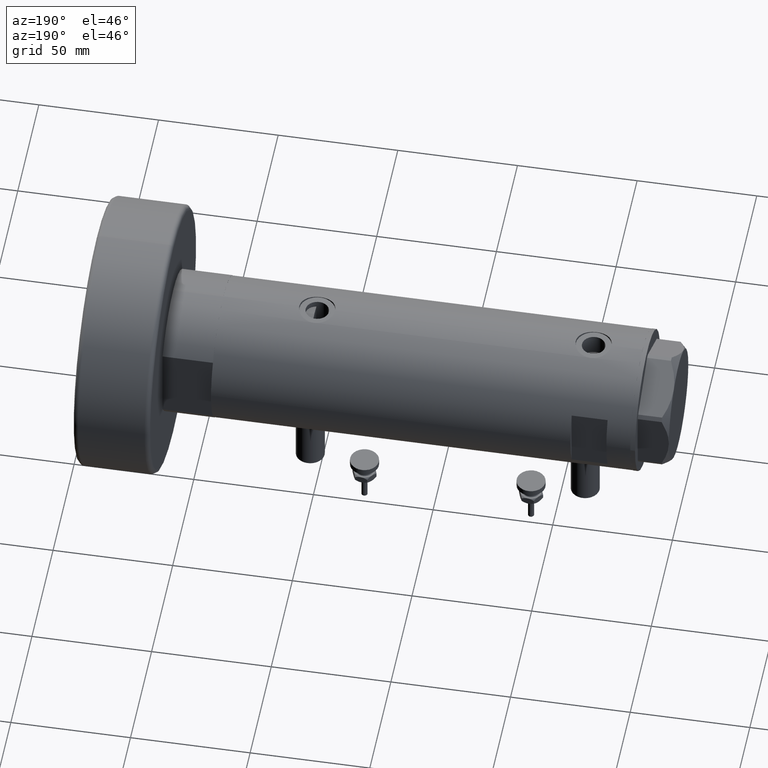
[diagram: clean part render]
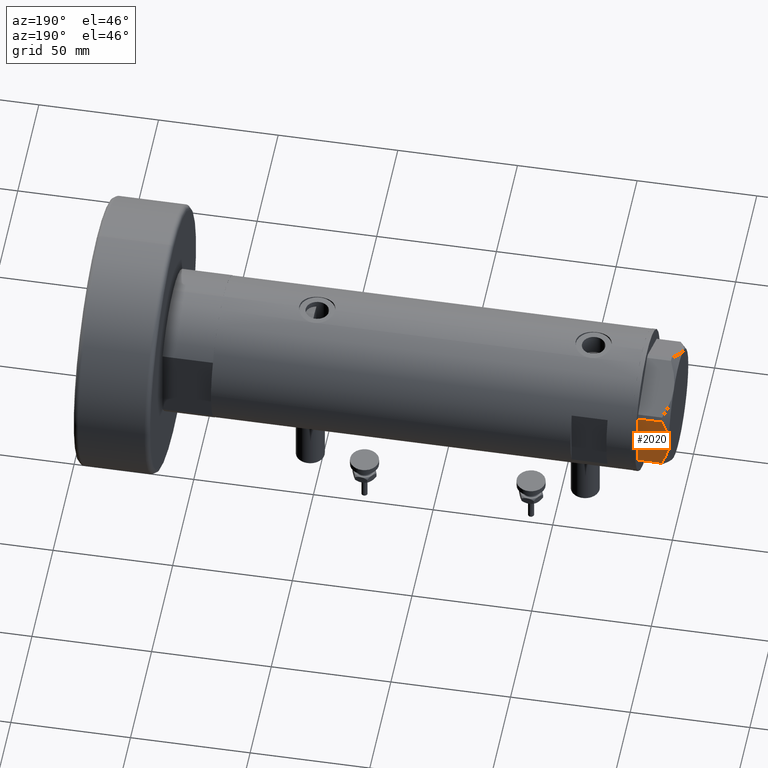
[diagram: same view with one face highlighted and labeled with its STEP entity id]
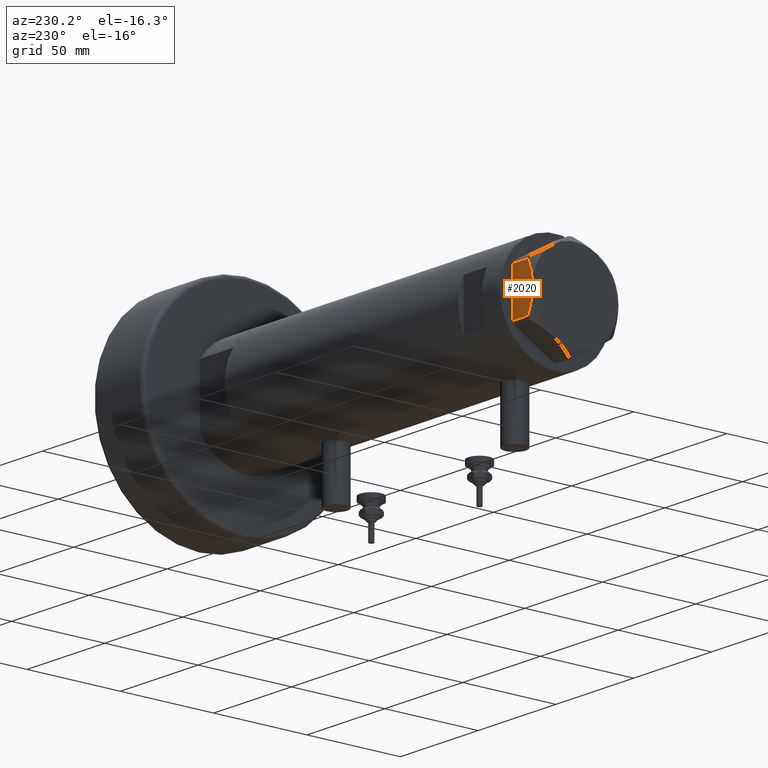
[diagram: same view with one face highlighted and labeled with its STEP entity id]
A machine part, auxiliary view. The second image highlights one B-rep face of the part: STEP entity #2020.
A second angle (auxiliary view) of the same face is appended — the face is thin or edge-on in the first view.
In plain terms, the highlighted planar face has unit normal (0, -1, 0).
Its self-contained STEP definition (entity closure, byte-faithful):
#62 = CARTESIAN_POINT ( 'NONE',  ( 23.00000000000003197, -8.246028007352199651, 11.57113180864690705 ) ) ;
#91 = CARTESIAN_POINT ( 'NONE',  ( 23.00000000000002132, -7.239756182922042704, 11.89218606342284978 ) ) ;
#92 = VERTEX_POINT ( 'NONE', #4382 ) ;
#134 = DIRECTION ( 'NONE',  ( -1.032024811306395780E-14, 1.000000000000000000, 0.000000000000000000 ) ) ;
#261 = CARTESIAN_POINT ( 'NONE',  ( 22.99999999999986500, 8.252113629125442884, 11.58164206268022056 ) ) ;
#379 = CARTESIAN_POINT ( 'NONE',  ( 23.00000000000007461, -12.15905619136117544, 9.983800287807614637 ) ) ;
#614 = AXIS2_PLACEMENT_3D ( 'NONE', #5687, #1363, #4766 ) ;
#656 = LINE ( 'NONE', #4566, #3728 ) ;
#685 = CARTESIAN_POINT ( 'NONE',  ( 22.99999999999987210, 7.253003311474555126, 11.90327681034763430 ) ) ;
#724 = CARTESIAN_POINT ( 'NONE',  ( 22.99999999999992539, 2.119709279062088836, 12.90853521217320043 ) ) ;
#759 = CARTESIAN_POINT ( 'NONE',  ( 22.99999999999982947, 11.68282849742354301, 10.20637235269540888 ) ) ;
#803 = FACE_OUTER_BOUND ( 'NONE', #4490, .T. ) ;
#899 = CARTESIAN_POINT ( 'NONE',  ( 22.99999999999982236, 12.15905619136166571, 0.000000000000000000 ) ) ;
#932 = CARTESIAN_POINT ( 'NONE',  ( 22.99999999999982236, 12.15905619136166571, 13.00000000000000000 ) ) ;
#1043 = CARTESIAN_POINT ( 'NONE',  ( 23.00000000000005684, -10.23890159976106240, 10.84081242829091529 ) ) ;
#1106 = CARTESIAN_POINT ( 'NONE',  ( 22.99999999999996447, -2.122900714017910584, 13.00000000000008882 ) ) ;
#1363 = DIRECTION ( 'NONE',  ( -1.000000000000000000, -1.032024811306395780E-14, 0.000000000000000000 ) ) ;
#1519 = CARTESIAN_POINT ( 'NONE',  ( 23.00000000000007461, -12.15905619136117721, 0.000000000000000000 ) ) ;
#1595 = CARTESIAN_POINT ( 'NONE',  ( 22.99999999999999289, -4.194757081058820170, 12.70300035152520479 ) ) ;
#1796 = ORIENTED_EDGE ( 'NONE', *, *, #3426, .F. ) ;
#1955 = CARTESIAN_POINT ( 'NONE',  ( 22.99999999999995026, 2.373657066004705010E-13, 13.00000000000000000 ) ) ;
#2019 = CARTESIAN_POINT ( 'NONE',  ( 23.00000000000001421, -6.734330413511261604, 12.03938974125266448 ) ) ;
#2020 = ADVANCED_FACE ( 'NONE', ( #803 ), #6143, .F. ) ;
#2215 = ORIENTED_EDGE ( 'NONE', *, *, #5692, .T. ) ;
#2295 = CARTESIAN_POINT ( 'NONE',  ( 22.99999999999990052, 5.228918809624289565, 12.43333703384985256 ) ) ;
#2639 = CARTESIAN_POINT ( 'NONE',  ( 22.99999999999984368, 11.20155944044835472, 10.42110268263274264 ) ) ;
#2673 = VECTOR ( 'NONE', #4693, 1000.000000000000000 ) ;
#2876 = VERTEX_POINT ( 'NONE', #1955 ) ;
#3056 = VERTEX_POINT ( 'NONE', #1519 ) ;
#3239 = CARTESIAN_POINT ( 'NONE',  ( 23.00000000000007461, -12.15905619136117544, 9.983800287807614637 ) ) ;
#3334 = CARTESIAN_POINT ( 'NONE',  ( 23.00000000000006750, -11.20825071633899483, 10.42817330637845608 ) ) ;
#3423 = VECTOR ( 'NONE', #6147, 1000.000000000000000 ) ;
#3426 = EDGE_CURVE ( 'NONE', #5842, #2876, #6184, .T. ) ;
#3509 = ORIENTED_EDGE ( 'NONE', *, *, #5330, .T. ) ;
#3618 = CARTESIAN_POINT ( 'NONE',  ( 22.99999999999995026, 2.373657066004705010E-13, 13.00000000000000000 ) ) ;
#3728 = VECTOR ( 'NONE', #134, 1000.000000000000000 ) ;
#4215 = CARTESIAN_POINT ( 'NONE',  ( 22.99999999999992184, 2.643615312305319875, 12.85430456063626714 ) ) ;
#4287 = CARTESIAN_POINT ( 'NONE',  ( 22.99999999999985434, 9.734726261263476843, 11.02892470009566139 ) ) ;
#4382 = CARTESIAN_POINT ( 'NONE',  ( 22.99999999999982236, 12.15905619136166038, 9.983800287807609308 ) ) ;
#4465 = CARTESIAN_POINT ( 'NONE',  ( 23.00000000000004263, -8.748091966971225375, 11.39681897828457124 ) ) ;
#4490 = EDGE_LOOP ( 'NONE', ( #1796, #3509, #4769, #2215, #6118 ) ) ;
#4566 = CARTESIAN_POINT ( 'NONE',  ( 23.00000000000008527, -13.27905619136115867, 0.000000000000000000 ) ) ;
#4684 = CARTESIAN_POINT ( 'NONE',  ( 22.99999999999993960, 1.063773509315898647, 12.98143808360683060 ) ) ;
#4693 = DIRECTION ( 'NONE',  ( 0.000000000000000000, 0.000000000000000000, 1.000000000000000000 ) ) ;
#4766 = DIRECTION ( 'NONE',  ( 1.032024811306395780E-14, -1.000000000000000000, 0.000000000000000000 ) ) ;
#4769 = ORIENTED_EDGE ( 'NONE', *, *, #6001, .T. ) ;
#4918 = VERTEX_POINT ( 'NONE', #899 ) ;
#4994 = B_SPLINE_CURVE_WITH_KNOTS ( 'NONE', 3,
 ( #5572, #5145, #4684, #724, #4215, #5671, #2295, #685, #261, #4287, #5178, #2639, #759, #6191 ),
 .UNSPECIFIED., .F., .F.,
 ( 4, 2, 2, 2, 2, 2, 4 ),
 ( 0.04777139595992689614, 0.04934380568070229761, 0.05091621540147769215, 0.05406103484302849510, 0.05720585428457929111, 0.05877826400535468565, 0.06035067372613008713 ),
 .UNSPECIFIED. ) ;
#5044 = LINE ( 'NONE', #6082, #3423 ) ;
#5145 = CARTESIAN_POINT ( 'NONE',  ( 22.99999999999994671, 0.5295934231899315225, 13.00000000000009770 ) ) ;
#5178 = CARTESIAN_POINT ( 'NONE',  ( 22.99999999999984723, 10.22738952213813590, 10.83247031367476687 ) ) ;
#5330 = EDGE_CURVE ( 'NONE', #5842, #3056, #5044, .T. ) ;
#5572 = CARTESIAN_POINT ( 'NONE',  ( 22.99999999999995026, 2.373657066004705010E-13, 13.00000000000000000 ) ) ;
#5662 = LINE ( 'NONE', #932, #2673 ) ;
#5671 = CARTESIAN_POINT ( 'NONE',  ( 22.99999999999990763, 4.203926054642130872, 12.64168122312251263 ) ) ;
#5687 = CARTESIAN_POINT ( 'NONE',  ( 23.00000000000008527, -13.27905619136115867, 13.00000000000000000 ) ) ;
#5692 = EDGE_CURVE ( 'NONE', #4918, #92, #5662, .T. ) ;
#5823 = EDGE_CURVE ( 'NONE', #2876, #92, #4994, .T. ) ;
#5842 = VERTEX_POINT ( 'NONE', #3239 ) ;
#6001 = EDGE_CURVE ( 'NONE', #3056, #4918, #656, .T. ) ;
#6082 = CARTESIAN_POINT ( 'NONE',  ( 23.00000000000007461, -12.15905619136117721, 13.00000000000000000 ) ) ;
#6118 = ORIENTED_EDGE ( 'NONE', *, *, #5823, .F. ) ;
#6143 = PLANE ( 'NONE',  #614 ) ;
#6147 = DIRECTION ( 'NONE',  ( 0.000000000000000000, 0.000000000000000000, -1.000000000000000000 ) ) ;
#6184 = B_SPLINE_CURVE_WITH_KNOTS ( 'NONE', 3,
 ( #379, #3334, #1043, #4465, #62, #91, #2019, #1595, #1106, #3618 ),
 .UNSPECIFIED., .F., .F.,
 ( 4, 2, 2, 2, 4 ),
 ( 0.03516523594057416324, 0.03831677594541234994, 0.03989254594783143981, 0.04146831595025052969, 0.04777139595992689614 ),
 .UNSPECIFIED. ) ;
#6191 = CARTESIAN_POINT ( 'NONE',  ( 22.99999999999982236, 12.15905619136166038, 9.983800287807609308 ) ) ;